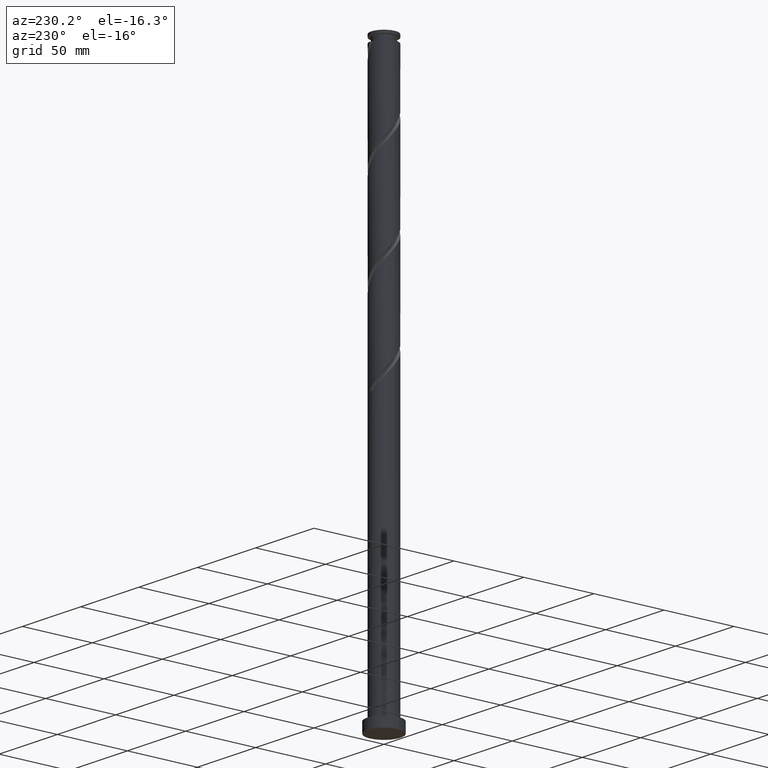
[diagram: clean part render]
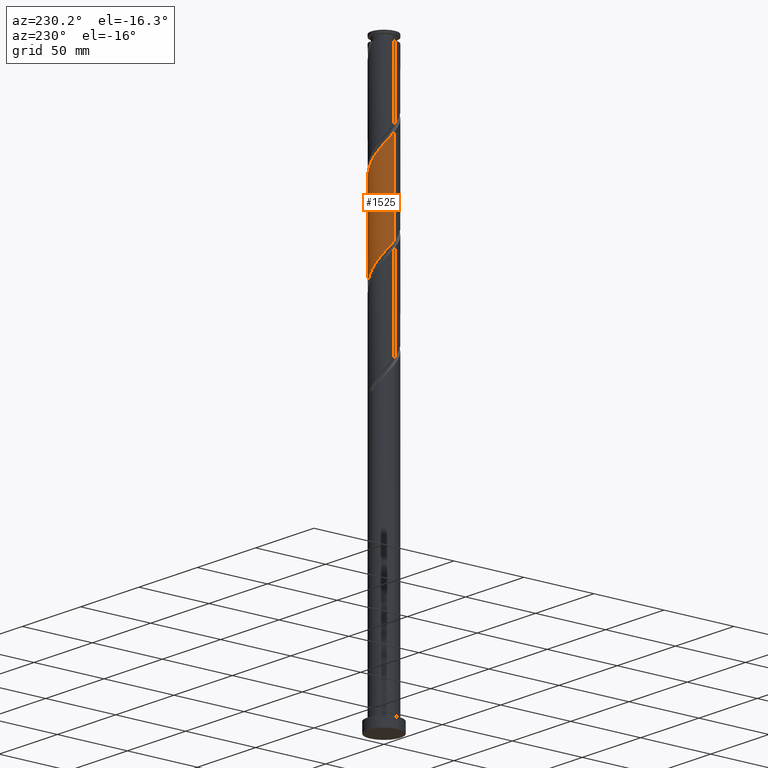
[diagram: same view with one face highlighted and labeled with its STEP entity id]
A machine part, auxiliary view. The second image highlights one B-rep face of the part: STEP entity #1525.
In plain terms, the highlighted cylindrical surface (edge-blend (fillet) strip) has radius 9 mm, axis along (-0, -0, -1).
Its self-contained STEP definition (entity closure, byte-faithful):
#38 = CARTESIAN_POINT ( 'NONE',  ( 3.585621346871659121, 8.254896701767883371, 258.9451343622942545 ) ) ;
#43 = CARTESIAN_POINT ( 'NONE',  ( -9.000000000000000000, 1.133089888886440769E-14, 279.9594664947046567 ) ) ;
#48 = CARTESIAN_POINT ( 'NONE',  ( -2.874716080912472549, 8.580839491336300640, 266.7229121400720260 ) ) ;
#53 = CYLINDRICAL_SURFACE ( 'NONE', #70, 9.000000000000000000 ) ;
#70 = AXIS2_PLACEMENT_3D ( 'NONE', #523, #1098, #1285 ) ;
#87 = VERTEX_POINT ( 'NONE', #1881 ) ;
#93 = CARTESIAN_POINT ( 'NONE',  ( 4.595953484614971885, 7.795640479728988659, 320.0562454734054540 ) ) ;
#177 = CARTESIAN_POINT ( 'NONE',  ( -5.356139575911533335, 7.232687525626570135, 270.0562454734053404 ) ) ;
#180 =( BOUNDED_CURVE ( )  B_SPLINE_CURVE ( 2, ( #43, #289, #441, #1308, #1187, #1193, #1402, #2006, #1627, #828, #177, #342, #1581, #48, #1733, #935, #1396, #188, #980, #789, #38, #683, #1273, #958, #1603, #1719, #642, #1251, #209, #1754, #1281, #359, #517 ),
 .UNSPECIFIED., .F., .T. ) 
 B_SPLINE_CURVE_WITH_KNOTS ( ( 3, 2, 2, 2, 2, 2, 2, 2, 2, 2, 2, 2, 2, 2, 2, 2, 3 ),
 ( 0.6795286012773116280, 0.6833333333333333481, 0.6916666666666666519, 0.6999999999999999556, 0.7083333333333333703, 0.7166666666666666741, 0.7249999999999999778, 0.7333333333333332815, 0.7416666666666666963, 0.7500000000000000000, 0.7583333333333333037, 0.7666666666666667185, 0.7750000000000000222, 0.7833333333333333259, 0.7916666666666666297, 0.8000000000000000444, 0.8045286012773114059 ),
 .UNSPECIFIED. ) 
 CURVE ( )  GEOMETRIC_REPRESENTATION_ITEM ( )  RATIONAL_B_SPLINE_CURVE ( ( 0.9066196499552123811, 0.9068171577856252163, 0.9090909090909240486, 0.9041108139711723224, 0.9090909090909240486, 0.9041108139711723224, 0.9090909090909240486, 0.9041108139711723224, 0.9090909090909240486, 0.9041108139711723224, 0.9090909090909240486, 0.9041108139711723224, 0.9090909090909240486, 0.9041108139711723224, 0.9090909090909240486, 0.9041108139711723224, 0.9090909090909240486, 0.9041108139711723224, 0.9090909090909240486, 0.9041108139711723224, 0.9090909090909240486, 0.9041108139711723224, 0.9090909090909240486, 0.9041108139711723224, 0.9090909090909240486, 0.9041108139711723224, 0.9090909090909240486, 0.9041108139711723224, 0.9090909090909240486, 0.9041108139711723224, 0.9090909090909240486, 0.9063845652764712657, 0.9066196499552123811 ) ) 
 REPRESENTATION_ITEM ( '' )  );
#188 = CARTESIAN_POINT ( 'NONE',  ( 0.8639580317486544869, 9.008239308616881047, 262.2784676956276257 ) ) ;
#202 = CARTESIAN_POINT ( 'NONE',  ( 9.000000000000014211, 3.707207024324998828E-15, 309.0419133409949950 ) ) ;
#209 = CARTESIAN_POINT ( 'NONE',  ( 8.533832754774708818, 2.858968085434720141, 250.0562454734053688 ) ) ;
#241 = CARTESIAN_POINT ( 'NONE',  ( 8.958891231136661304, 0.8592251792533075472, 310.0562454734053972 ) ) ;
#279 = CARTESIAN_POINT ( 'NONE',  ( -7.752935145509708192, 4.570776370543696565, 336.7229121400719691 ) ) ;
#289 = CARTESIAN_POINT ( 'NONE',  ( -9.000000000000000000, 0.4305959935807650019, 279.4509179691407326 ) ) ;
#302 = CARTESIAN_POINT ( 'NONE',  ( -5.993866944837749955, 6.779996900406008997, 333.3895788067387684 ) ) ;
#342 = CARTESIAN_POINT ( 'NONE',  ( -4.595953484614954121, 7.795640479728977112, 268.9451343622943114 ) ) ;
#359 = CARTESIAN_POINT ( 'NONE',  ( 8.999999999999996447, 0.5127636370178964009, 247.2317244707558928 ) ) ;
#372 = EDGE_CURVE ( 'NONE', #1418, #87, #584, .T. ) ;
#399 = CARTESIAN_POINT ( 'NONE',  ( 7.834876024663330440, 4.428850604632764032, 314.5006899178497974 ) ) ;
#431 = CARTESIAN_POINT ( 'NONE',  ( -9.000000000000000000, 0.000000000000000000, 400.0000000000000000 ) ) ;
#432 = CARTESIAN_POINT ( 'NONE',  ( -8.834322409043316782, 1.962026119858957696, 340.0562454734053972 ) ) ;
#441 = CARTESIAN_POINT ( 'NONE',  ( -8.958891231136643540, 0.8592251792533156518, 278.9451343622943114 ) ) ;
#499 = VECTOR ( 'NONE', #824, 1000.000000000000000 ) ;
#517 = CARTESIAN_POINT ( 'NONE',  ( 9.000000000000000000, 1.019481931689383533E-14, 246.6261331613713992 ) ) ;
#523 = CARTESIAN_POINT ( 'NONE',  ( 0.000000000000000000, 0.000000000000000000, 400.0000000000000000 ) ) ;
#555 = CARTESIAN_POINT ( 'NONE',  ( 0.08194087915362534280, 8.999626975176459709, 325.6118010289608264 ) ) ;
#563 = CARTESIAN_POINT ( 'NONE',  ( -4.453245951908129108, 7.878032712152670314, 331.1673565845166536 ) ) ;
#564 = EDGE_LOOP ( 'NONE', ( #1083, #1907, #1582, #972 ) ) ;
#584 = LINE ( 'NONE', #431, #1063 ) ;
#634 = CARTESIAN_POINT ( 'NONE',  ( 9.000000000000000000, 1.102182119232617714E-15, 400.0000000000000000 ) ) ;
#642 = CARTESIAN_POINT ( 'NONE',  ( 7.752935145509697534, 4.570776370543681466, 252.2784676956275689 ) ) ;
#683 = CARTESIAN_POINT ( 'NONE',  ( 4.453245951908126443, 7.878032712152652550, 257.8340232511832824 ) ) ;
#718 = CARTESIAN_POINT ( 'NONE',  ( -1.790977386791919868, 8.820000000000012719, 327.8340232511831118 ) ) ;
#719 = VERTEX_POINT ( 'NONE', #202 ) ;
#748 = CARTESIAN_POINT ( 'NONE',  ( -8.533832754774719476, 2.858968085434734796, 338.9451343622941977 ) ) ;
#760 = EDGE_CURVE ( 'NONE', #87, #1591, #180, .T. ) ;
#789 = CARTESIAN_POINT ( 'NONE',  ( 2.717996741835194019, 8.631760691383114192, 260.0562454734053404 ) ) ;
#824 = DIRECTION ( 'NONE',  ( -0.000000000000000000, -0.000000000000000000, -1.000000000000000000 ) ) ;
#828 = CARTESIAN_POINT ( 'NONE',  ( -6.116325667208115213, 6.669734571524163158, 271.1673565845164831 ) ) ;
#847 = CARTESIAN_POINT ( 'NONE',  ( 8.300366980569192421, 3.605371951659134933, 313.3895788067386547 ) ) ;
#882 = CARTESIAN_POINT ( 'NONE',  ( -6.633197067675520309, 6.082819795241444005, 334.5006899178497974 ) ) ;
#893 = CARTESIAN_POINT ( 'NONE',  ( -8.233343100506131051, 3.755910051010512785, 337.8340232511831687 ) ) ;
#935 = CARTESIAN_POINT ( 'NONE',  ( -1.027839790055891989, 8.991014641736004620, 264.5006899178498543 ) ) ;
#958 = CARTESIAN_POINT ( 'NONE',  ( 5.993866944837742849, 6.779996900405991234, 255.6118010289609686 ) ) ;
#972 = ORIENTED_EDGE ( 'NONE', *, *, #372, .F. ) ;
#980 = CARTESIAN_POINT ( 'NONE',  ( 1.790977386791922310, 8.819999999999996732, 261.1673565845164831 ) ) ;
#984 = CARTESIAN_POINT ( 'NONE',  ( 8.584475003159710127, 2.703107271294720171, 312.2784676956276257 ) ) ;
#991 = CARTESIAN_POINT ( 'NONE',  ( 6.742855367982802939, 5.961031914565275258, 316.7229121400719691 ) ) ;
#1045 = CARTESIAN_POINT ( 'NONE',  ( -7.272527190513290662, 5.385642690076883454, 335.6118010289610538 ) ) ;
#1063 = VECTOR ( 'NONE', #1198, 1000.000000000000000 ) ;
#1083 = ORIENTED_EDGE ( 'NONE', *, *, #1781, .F. ) ;
#1098 = DIRECTION ( 'NONE',  ( -0.000000000000000000, -0.000000000000000000, -1.000000000000000000 ) ) ;
#1139 = CARTESIAN_POINT ( 'NONE',  ( 9.000000000000014211, 3.707207024324998828E-15, 309.0419133409949950 ) ) ;
#1148 = CARTESIAN_POINT ( 'NONE',  ( 8.868583025750229609, 1.800842590930306519, 311.1673565845164831 ) ) ;
#1166 = CARTESIAN_POINT ( 'NONE',  ( -0.8639580317486471595, 9.008239308616900587, 326.7229121400720260 ) ) ;
#1175 = CARTESIAN_POINT ( 'NONE',  ( 7.369385068757479118, 5.252329257606382917, 315.6118010289608833 ) ) ;
#1187 = CARTESIAN_POINT ( 'NONE',  ( -8.584475003159690587, 2.703107271294722835, 276.7229121400720828 ) ) ;
#1193 = CARTESIAN_POINT ( 'NONE',  ( -8.300366980569171105, 3.605371951659137597, 275.6118010289609970 ) ) ;
#1198 = DIRECTION ( 'NONE',  ( -0.000000000000000000, -0.000000000000000000, -1.000000000000000000 ) ) ;
#1251 = CARTESIAN_POINT ( 'NONE',  ( 8.233343100506116841, 3.755910051010501682, 251.1673565845165115 ) ) ;
#1273 = CARTESIAN_POINT ( 'NONE',  ( 5.223556448372938199, 7.329014806279320560, 256.7229121400720260 ) ) ;
#1281 = CARTESIAN_POINT ( 'NONE',  ( 8.941760922783187127, 1.022209176141312126, 247.8340232511831118 ) ) ;
#1285 = DIRECTION ( 'NONE',  ( -1.000000000000000000, 0.000000000000000000, 0.000000000000000000 ) ) ;
#1308 = CARTESIAN_POINT ( 'NONE',  ( -8.868583025750210069, 1.800842590930307185, 277.8340232511831118 ) ) ;
#1314 = CARTESIAN_POINT ( 'NONE',  ( 1.027839790055897984, 8.991014641736025936, 324.5006899178498543 ) ) ;
#1325 = CARTESIAN_POINT ( 'NONE',  ( -2.717996741835190022, 8.631760691383133732, 328.9451343622942545 ) ) ;
#1360 = CARTESIAN_POINT ( 'NONE',  ( -8.941760922783203114, 1.022209176141317677, 341.1673565845164831 ) ) ;
#1396 = CARTESIAN_POINT ( 'NONE',  ( -0.08194087915361840391, 8.999626975176445498, 263.3895788067387116 ) ) ;
#1402 = CARTESIAN_POINT ( 'NONE',  ( -7.834876024663315341, 4.428850604632757815, 274.5006899178497974 ) ) ;
#1418 = VERTEX_POINT ( 'NONE', #1673 ) ;
#1441 = FACE_OUTER_BOUND ( 'NONE', #564, .T. ) ;
#1464 = CARTESIAN_POINT ( 'NONE',  ( 2.874716080912484539, 8.580839491336313074, 322.2784676956277394 ) ) ;
#1472 = CARTESIAN_POINT ( 'NONE',  ( 1.951277935484194481, 8.785927066536167729, 323.3895788067386547 ) ) ;
#1481 = CARTESIAN_POINT ( 'NONE',  ( 5.356139575911548434, 7.232687525626578129, 318.9451343622942545 ) ) ;
#1497 = EDGE_CURVE ( 'NONE', #719, #1591, #1598, .T. ) ;
#1525 = ADVANCED_FACE ( 'NONE', ( #1441 ), #53, .T. ) ;
#1581 = CARTESIAN_POINT ( 'NONE',  ( -3.735334782763714223, 8.188239985532636211, 267.8340232511831118 ) ) ;
#1582 = ORIENTED_EDGE ( 'NONE', *, *, #760, .F. ) ;
#1591 = VERTEX_POINT ( 'NONE', #1714 ) ;
#1598 = LINE ( 'NONE', #634, #499 ) ;
#1603 = CARTESIAN_POINT ( 'NONE',  ( 6.633197067675509651, 6.082819795241429794, 254.5006899178497974 ) ) ;
#1623 = CARTESIAN_POINT ( 'NONE',  ( 3.735334782763725325, 8.188239985532652199, 321.1673565845163125 ) ) ;
#1627 = CARTESIAN_POINT ( 'NONE',  ( -6.742855367982785175, 5.961031914565269929, 272.2784676956275689 ) ) ;
#1673 = CARTESIAN_POINT ( 'NONE',  ( -9.000000000000015987, -5.979366168266126546E-17, 342.3752466743283662 ) ) ;
#1714 = CARTESIAN_POINT ( 'NONE',  ( 9.000000000000000000, 1.019481931689383533E-14, 246.6261331613713992 ) ) ;
#1719 = CARTESIAN_POINT ( 'NONE',  ( 7.272527190513282669, 5.385642690076863914, 253.3895788067387116 ) ) ;
#1733 = CARTESIAN_POINT ( 'NONE',  ( -1.951277935484181381, 8.785927066536149965, 265.6118010289609401 ) ) ;
#1754 = CARTESIAN_POINT ( 'NONE',  ( 8.834322409043297242, 1.962026119858946149, 248.9451343622943114 ) ) ;
#1770 =( BOUNDED_CURVE ( )  B_SPLINE_CURVE ( 2, ( #1139, #1772, #241, #1148, #984, #847, #399, #1175, #991, #1779, #1481, #93, #1623, #1464, #1472, #1314, #555, #1166, #718, #1325, #1960, #563, #1850, #302, #882, #1045, #279, #893, #748, #432, #1360, #1970, #1998 ),
 .UNSPECIFIED., .F., .T. ) 
 B_SPLINE_CURVE_WITH_KNOTS ( ( 3, 2, 2, 2, 2, 2, 2, 2, 2, 2, 2, 2, 2, 2, 2, 2, 3 ),
 ( 0.4295286012773115170, 0.4333333333333333481, 0.4416666666666666519, 0.4499999999999999556, 0.4583333333333333703, 0.4666666666666666741, 0.4749999999999999778, 0.4833333333333332815, 0.4916666666666666963, 0.5000000000000000000, 0.5083333333333333037, 0.5166666666666666075, 0.5250000000000000222, 0.5333333333333333259, 0.5416666666666667407, 0.5500000000000000444, 0.5545286012773117390 ),
 .UNSPECIFIED. ) 
 CURVE ( )  GEOMETRIC_REPRESENTATION_ITEM ( )  RATIONAL_B_SPLINE_CURVE ( ( 0.9066196499552202637, 0.9068171577856329879, 0.9090909090909319312, 0.9041108139711800940, 0.9090909090909319312, 0.9041108139711800940, 0.9090909090909319312, 0.9041108139711800940, 0.9090909090909319312, 0.9041108139711800940, 0.9090909090909319312, 0.9041108139711800940, 0.9090909090909319312, 0.9041108139711800940, 0.9090909090909319312, 0.9041108139711800940, 0.9090909090909319312, 0.9041108139711800940, 0.9090909090909319312, 0.9041108139711800940, 0.9090909090909319312, 0.9041108139711800940, 0.9090909090909319312, 0.9041108139711800940, 0.9090909090909319312, 0.9041108139711800940, 0.9090909090909319312, 0.9041108139711800940, 0.9090909090909319312, 0.9041108139711800940, 0.9090909090909319312, 0.9063845652764789262, 0.9066196499552202637 ) ) 
 REPRESENTATION_ITEM ( '' )  );
#1772 = CARTESIAN_POINT ( 'NONE',  ( 9.000000000000014211, 0.4305959935807444072, 309.5504618665590328 ) ) ;
#1779 = CARTESIAN_POINT ( 'NONE',  ( 6.116325667208127648, 6.669734571524174704, 317.8340232511832824 ) ) ;
#1781 = EDGE_CURVE ( 'NONE', #719, #1418, #1770, .T. ) ;
#1850 = CARTESIAN_POINT ( 'NONE',  ( -5.223556448372938199, 7.329014806279336547, 332.2784676956275689 ) ) ;
#1881 = CARTESIAN_POINT ( 'NONE',  ( -9.000000000000000000, 1.133089888886440769E-14, 279.9594664947046567 ) ) ;
#1907 = ORIENTED_EDGE ( 'NONE', *, *, #1497, .T. ) ;
#1960 = CARTESIAN_POINT ( 'NONE',  ( -3.585621346871660009, 8.254896701767901135, 330.0562454734053404 ) ) ;
#1970 = CARTESIAN_POINT ( 'NONE',  ( -9.000000000000019540, 0.5127636370178669800, 341.7696553649438442 ) ) ;
#1998 = CARTESIAN_POINT ( 'NONE',  ( -9.000000000000015987, -5.979366168266126546E-17, 342.3752466743283662 ) ) ;
#2006 = CARTESIAN_POINT ( 'NONE',  ( -7.369385068757460466, 5.252329257606380253, 273.3895788067387684 ) ) ;